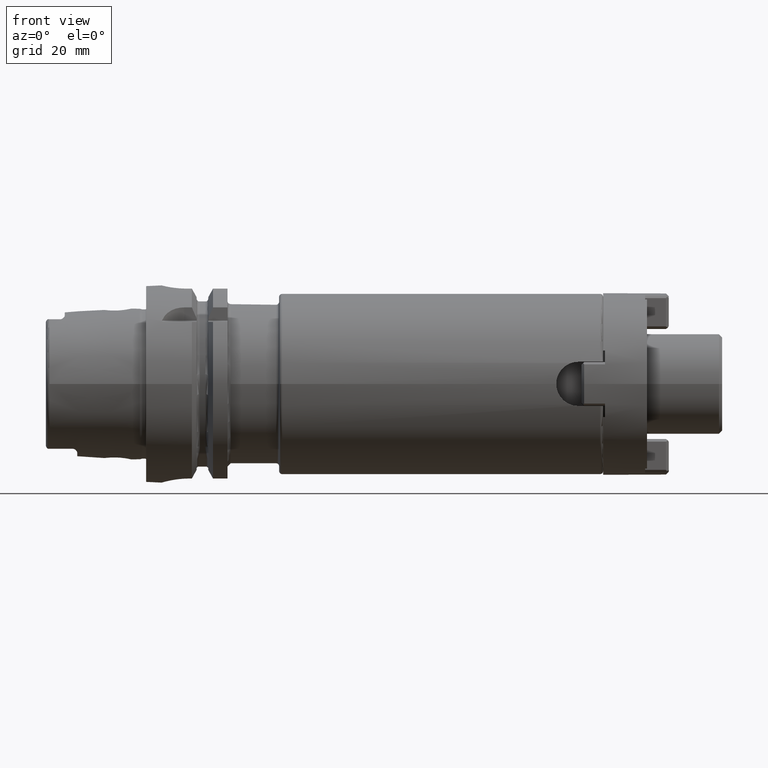
[diagram: clean part render]
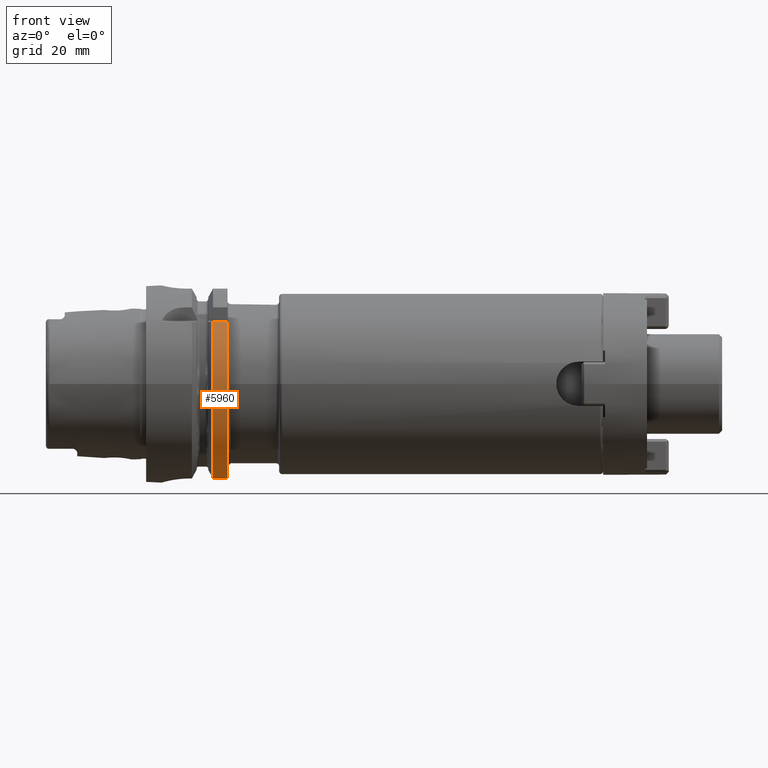
[diagram: same view with one face highlighted and labeled with its STEP entity id]
A machine part, front view. The second image highlights one B-rep face of the part: STEP entity #5960.
In plain terms, the highlighted cylindrical surface (partial cylindrical patch) has radius 31.5 mm, axis along (1, 0, 0).
Its self-contained STEP definition (entity closure, byte-faithful):
#2099=DIRECTION('',(1.E0,0.E0,0.E0));
#2100=VECTOR('',#2099,4.622500925241E0);
#2101=CARTESIAN_POINT('',(2.137749907476E1,-2.445868966237E1,1.985E1));
#2102=LINE('',#2101,#2100);
#2103=CARTESIAN_POINT('',(2.6E1,0.E0,0.E0));
#2104=DIRECTION('',(1.E0,0.E0,0.E0));
#2105=DIRECTION('',(0.E0,-7.764663384879E-1,6.301587301587E-1));
#2106=AXIS2_PLACEMENT_3D('',#2103,#2104,#2105);
#2236=CARTESIAN_POINT('',(2.137749907476E1,0.E0,0.E0));
#2237=DIRECTION('',(1.E0,0.E0,0.E0));
#2238=DIRECTION('',(0.E0,-7.764663384879E-1,6.301587301587E-1));
#2239=AXIS2_PLACEMENT_3D('',#2236,#2237,#2238);
#2246=CARTESIAN_POINT('',(2.137749907476E1,-9.0175E0,-3.018169467989E1));
#2491=DIRECTION('',(1.E0,0.E0,0.E0));
#2492=VECTOR('',#2491,4.622500925241E0);
#2493=CARTESIAN_POINT('',(2.137749907476E1,-9.0175E0,-3.018169467989E1));
#2494=LINE('',#2493,#2492);
#3451=VERTEX_POINT('',#2246);
#3458=CARTESIAN_POINT('',(2.137749907476E1,-2.445868966237E1,1.985E1));
#3459=CARTESIAN_POINT('',(2.6E1,-2.445868966237E1,1.985E1));
#3460=VERTEX_POINT('',#3458);
#3461=VERTEX_POINT('',#3459);
#3485=CARTESIAN_POINT('',(2.6E1,-9.0175E0,-3.018169467989E1));
#3486=VERTEX_POINT('',#3485);
#5946=CARTESIAN_POINT('',(-3.49E1,0.E0,0.E0));
#5947=DIRECTION('',(1.E0,0.E0,0.E0));
#5948=DIRECTION('',(0.E0,-1.E0,0.E0));
#5949=AXIS2_PLACEMENT_3D('',#5946,#5947,#5948);
#5950=CYLINDRICAL_SURFACE('',#5949,3.15E1);
#5952=ORIENTED_EDGE('',*,*,#5951,.T.);
#5953=ORIENTED_EDGE('',*,*,#5157,.T.);
#5955=ORIENTED_EDGE('',*,*,#5954,.F.);
#5957=ORIENTED_EDGE('',*,*,#5956,.F.);
#5958=EDGE_LOOP('',(#5952,#5953,#5955,#5957));
#5959=FACE_OUTER_BOUND('',#5958,.F.);
#5960=ADVANCED_FACE('',(#5959),#5950,.T.);
#2107=CIRCLE('',#2106,3.15E1);
#2240=CIRCLE('',#2239,3.15E1);
#5157=EDGE_CURVE('',#3461,#3486,#2107,.T.);
#5951=EDGE_CURVE('',#3460,#3461,#2102,.T.);
#5954=EDGE_CURVE('',#3451,#3486,#2494,.T.);
#5956=EDGE_CURVE('',#3460,#3451,#2240,.T.);